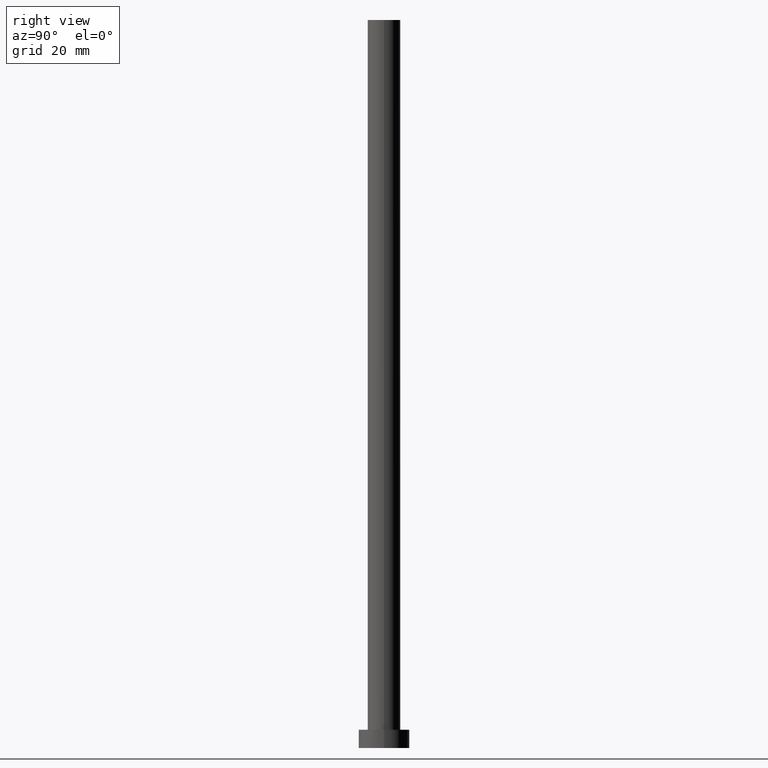
[diagram: clean part render]
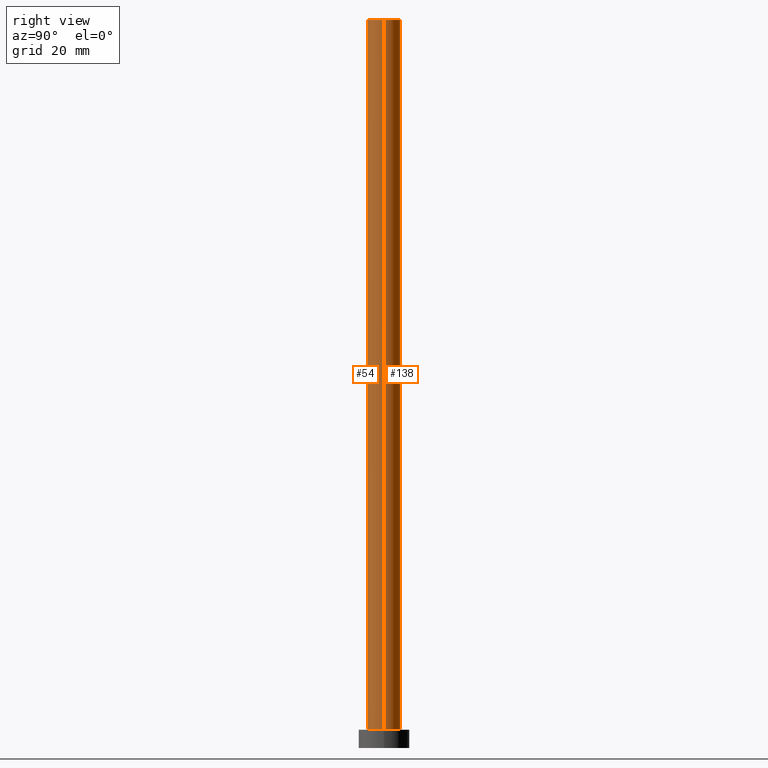
[diagram: same view with one multi-face feature highlighted, each face labeled with its STEP entity id]
A machine part, right view. The highlighted faces form ONE feature: a constant-radius fillet chain: 2 tangent blend faces with common blend radius 4.5 mm. The faces share edges in the B-rep.
Their STEP definitions:
[1] entity #138 (Cylinder):
#1 = DIRECTION ( 'NONE',  ( 0.000000000000000000, 0.000000000000000000, 1.000000000000000000 ) ) ;
#6 = EDGE_CURVE ( 'NONE', #10, #137, #82, .T. ) ;
#10 = VERTEX_POINT ( 'NONE', #79 ) ;
#19 = CARTESIAN_POINT ( 'NONE',  ( 4.500000000000000888, 5.510910596163089556E-16, 5.000000000000000000 ) ) ;
#21 = CARTESIAN_POINT ( 'NONE',  ( 0.000000000000000000, 0.000000000000000000, 200.0000000000000000 ) ) ;
#25 = ORIENTED_EDGE ( 'NONE', *, *, #62, .F. ) ;
#48 = ORIENTED_EDGE ( 'NONE', *, *, #104, .F. ) ;
#53 = CARTESIAN_POINT ( 'NONE',  ( 4.500000000000000888, 5.510910596163089556E-16, 200.0000000000000000 ) ) ;
#57 = CIRCLE ( 'NONE', #94, 4.500000000000000888 ) ;
#59 = DIRECTION ( 'NONE',  ( -0.000000000000000000, -0.000000000000000000, -1.000000000000000000 ) ) ;
#62 = EDGE_CURVE ( 'NONE', #102, #230, #253, .T. ) ;
#71 = EDGE_LOOP ( 'NONE', ( #48, #234, #152, #25 ) ) ;
#79 = CARTESIAN_POINT ( 'NONE',  ( 4.500000000000000888, 5.510910596163089556E-16, 200.0000000000000000 ) ) ;
#80 = CARTESIAN_POINT ( 'NONE',  ( -4.500000000000000888, 0.000000000000000000, 200.0000000000000000 ) ) ;
#82 = LINE ( 'NONE', #53, #206 ) ;
#83 = DIRECTION ( 'NONE',  ( 1.000000000000000000, 0.000000000000000000, 0.000000000000000000 ) ) ;
#84 = AXIS2_PLACEMENT_3D ( 'NONE', #183, #110, #83 ) ;
#86 = CARTESIAN_POINT ( 'NONE',  ( 0.000000000000000000, 0.000000000000000000, 5.000000000000000000 ) ) ;
#94 = AXIS2_PLACEMENT_3D ( 'NONE', #86, #1, #168 ) ;
#98 = CIRCLE ( 'NONE', #84, 4.500000000000000888 ) ;
#100 = CARTESIAN_POINT ( 'NONE',  ( -4.500000000000000888, 0.000000000000000000, 200.0000000000000000 ) ) ;
#102 = VERTEX_POINT ( 'NONE', #100 ) ;
#104 = EDGE_CURVE ( 'NONE', #10, #102, #98, .T. ) ;
#110 = DIRECTION ( 'NONE',  ( 0.000000000000000000, 0.000000000000000000, 1.000000000000000000 ) ) ;
#118 = EDGE_CURVE ( 'NONE', #137, #230, #57, .T. ) ;
#126 = CYLINDRICAL_SURFACE ( 'NONE', #145, 4.500000000000000888 ) ;
#137 = VERTEX_POINT ( 'NONE', #19 ) ;
#138 = ADVANCED_FACE ( 'NONE', ( #170 ), #126, .T. ) ;
#145 = AXIS2_PLACEMENT_3D ( 'NONE', #21, #207, #225 ) ;
#152 = ORIENTED_EDGE ( 'NONE', *, *, #118, .T. ) ;
#168 = DIRECTION ( 'NONE',  ( 1.000000000000000000, 0.000000000000000000, 0.000000000000000000 ) ) ;
#170 = FACE_OUTER_BOUND ( 'NONE', #71, .T. ) ;
#183 = CARTESIAN_POINT ( 'NONE',  ( 0.000000000000000000, 0.000000000000000000, 200.0000000000000000 ) ) ;
#204 = DIRECTION ( 'NONE',  ( -0.000000000000000000, -0.000000000000000000, -1.000000000000000000 ) ) ;
#206 = VECTOR ( 'NONE', #59, 1000.000000000000000 ) ;
#207 = DIRECTION ( 'NONE',  ( -0.000000000000000000, -0.000000000000000000, -1.000000000000000000 ) ) ;
#223 = CARTESIAN_POINT ( 'NONE',  ( -4.500000000000000888, 0.000000000000000000, 5.000000000000000000 ) ) ;
#225 = DIRECTION ( 'NONE',  ( -1.000000000000000000, 0.000000000000000000, 0.000000000000000000 ) ) ;
#230 = VERTEX_POINT ( 'NONE', #223 ) ;
#234 = ORIENTED_EDGE ( 'NONE', *, *, #6, .T. ) ;
#248 = VECTOR ( 'NONE', #204, 1000.000000000000000 ) ;
#253 = LINE ( 'NONE', #80, #248 ) ;
[2] entity #54 (Cylinder):
#6 = EDGE_CURVE ( 'NONE', #10, #137, #82, .T. ) ;
#10 = VERTEX_POINT ( 'NONE', #79 ) ;
#14 = CARTESIAN_POINT ( 'NONE',  ( 0.000000000000000000, 0.000000000000000000, 200.0000000000000000 ) ) ;
#19 = CARTESIAN_POINT ( 'NONE',  ( 4.500000000000000888, 5.510910596163089556E-16, 5.000000000000000000 ) ) ;
#27 = CIRCLE ( 'NONE', #251, 4.500000000000000888 ) ;
#28 = ORIENTED_EDGE ( 'NONE', *, *, #6, .F. ) ;
#38 = EDGE_LOOP ( 'NONE', ( #28, #187, #56, #200 ) ) ;
#44 = DIRECTION ( 'NONE',  ( 0.000000000000000000, 0.000000000000000000, 1.000000000000000000 ) ) ;
#53 = CARTESIAN_POINT ( 'NONE',  ( 4.500000000000000888, 5.510910596163089556E-16, 200.0000000000000000 ) ) ;
#54 = ADVANCED_FACE ( 'NONE', ( #164 ), #252, .T. ) ;
#56 = ORIENTED_EDGE ( 'NONE', *, *, #62, .T. ) ;
#59 = DIRECTION ( 'NONE',  ( -0.000000000000000000, -0.000000000000000000, -1.000000000000000000 ) ) ;
#62 = EDGE_CURVE ( 'NONE', #102, #230, #253, .T. ) ;
#79 = CARTESIAN_POINT ( 'NONE',  ( 4.500000000000000888, 5.510910596163089556E-16, 200.0000000000000000 ) ) ;
#80 = CARTESIAN_POINT ( 'NONE',  ( -4.500000000000000888, 0.000000000000000000, 200.0000000000000000 ) ) ;
#82 = LINE ( 'NONE', #53, #206 ) ;
#87 = AXIS2_PLACEMENT_3D ( 'NONE', #97, #119, #184 ) ;
#93 = EDGE_CURVE ( 'NONE', #102, #10, #143, .T. ) ;
#97 = CARTESIAN_POINT ( 'NONE',  ( 0.000000000000000000, 0.000000000000000000, 200.0000000000000000 ) ) ;
#100 = CARTESIAN_POINT ( 'NONE',  ( -4.500000000000000888, 0.000000000000000000, 200.0000000000000000 ) ) ;
#102 = VERTEX_POINT ( 'NONE', #100 ) ;
#108 = DIRECTION ( 'NONE',  ( 1.000000000000000000, 0.000000000000000000, 0.000000000000000000 ) ) ;
#119 = DIRECTION ( 'NONE',  ( -0.000000000000000000, -0.000000000000000000, -1.000000000000000000 ) ) ;
#137 = VERTEX_POINT ( 'NONE', #19 ) ;
#142 = CARTESIAN_POINT ( 'NONE',  ( 0.000000000000000000, 0.000000000000000000, 5.000000000000000000 ) ) ;
#143 = CIRCLE ( 'NONE', #213, 4.500000000000000888 ) ;
#151 = EDGE_CURVE ( 'NONE', #230, #137, #27, .T. ) ;
#164 = FACE_OUTER_BOUND ( 'NONE', #38, .T. ) ;
#184 = DIRECTION ( 'NONE',  ( -1.000000000000000000, 0.000000000000000000, 0.000000000000000000 ) ) ;
#187 = ORIENTED_EDGE ( 'NONE', *, *, #93, .F. ) ;
#200 = ORIENTED_EDGE ( 'NONE', *, *, #151, .T. ) ;
#201 = DIRECTION ( 'NONE',  ( 1.000000000000000000, 0.000000000000000000, 0.000000000000000000 ) ) ;
#204 = DIRECTION ( 'NONE',  ( -0.000000000000000000, -0.000000000000000000, -1.000000000000000000 ) ) ;
#206 = VECTOR ( 'NONE', #59, 1000.000000000000000 ) ;
#213 = AXIS2_PLACEMENT_3D ( 'NONE', #14, #218, #201 ) ;
#218 = DIRECTION ( 'NONE',  ( 0.000000000000000000, 0.000000000000000000, 1.000000000000000000 ) ) ;
#223 = CARTESIAN_POINT ( 'NONE',  ( -4.500000000000000888, 0.000000000000000000, 5.000000000000000000 ) ) ;
#230 = VERTEX_POINT ( 'NONE', #223 ) ;
#248 = VECTOR ( 'NONE', #204, 1000.000000000000000 ) ;
#251 = AXIS2_PLACEMENT_3D ( 'NONE', #142, #44, #108 ) ;
#252 = CYLINDRICAL_SURFACE ( 'NONE', #87, 4.500000000000000888 ) ;
#253 = LINE ( 'NONE', #80, #248 ) ;